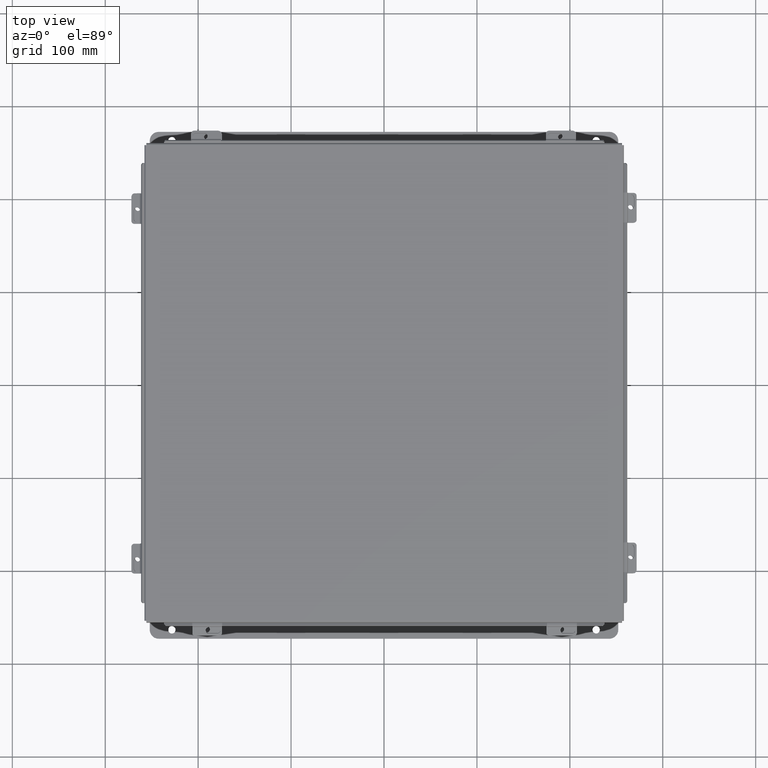
[diagram: clean part render]
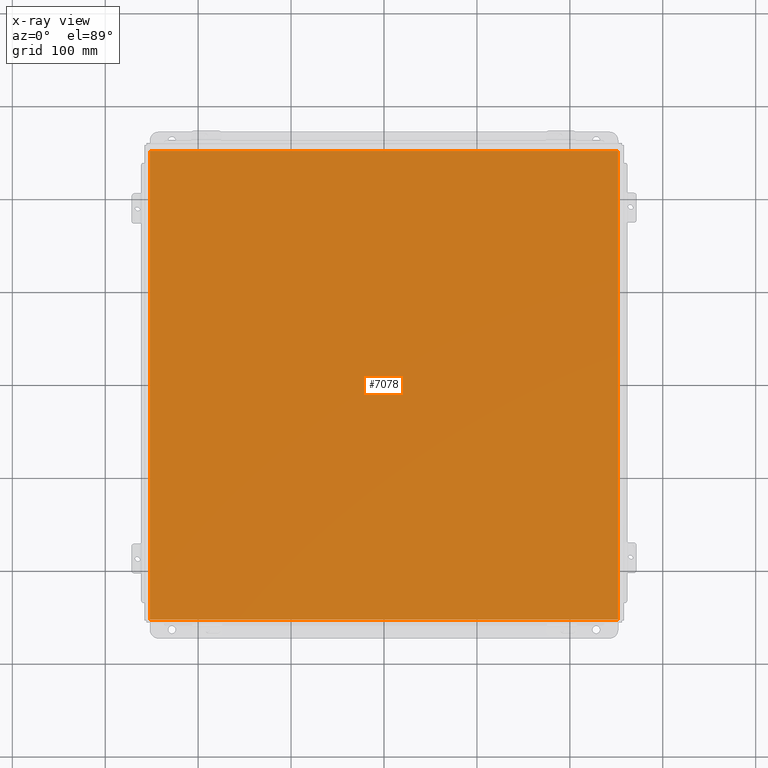
[diagram: x-ray — body ghosted, one internal face saturated and labeled with its STEP entity id]
A machine part, top view, then the same camera in x-ray: the body is ghosted and one INTERNAL B-rep face — a face not visible from any outside direction — is saturated and labeled: STEP entity #7078.
In plain terms, the highlighted planar face has unit normal (0, 0, -1).
Its self-contained STEP definition (entity closure, byte-faithful):
#652 = LINE ( 'NONE', #2819, #8525 ) ;
#906 = LINE ( 'NONE', #3030, #6711 ) ;
#1067 = CARTESIAN_POINT ( 'NONE',  ( -9.912299999999998300, -9.925299999999998200, 4.268512490100411300E-017 ) ) ;
#1500 = VERTEX_POINT ( 'NONE', #3224 ) ;
#2051 = ORIENTED_EDGE ( 'NONE', *, *, #2681, .F. ) ;
#2080 = DIRECTION ( 'NONE',  ( 1.000000000000000000, 0.0000000000000000000, 0.0000000000000000000 ) ) ;
#2096 = FACE_OUTER_BOUND ( 'NONE', #2622, .T. ) ;
#2171 = VERTEX_POINT ( 'NONE', #6769 ) ;
#2272 = DIRECTION ( 'NONE',  ( -1.000000000000000000, -0.0000000000000000000, -0.0000000000000000000 ) ) ;
#2355 = VERTEX_POINT ( 'NONE', #4726 ) ;
#2416 = DIRECTION ( 'NONE',  ( -0.0000000000000000000, -1.000000000000000000, -0.0000000000000000000 ) ) ;
#2622 = EDGE_LOOP ( 'NONE', ( #7861, #4290, #2051, #6217 ) ) ;
#2681 = EDGE_CURVE ( 'NONE', #6149, #2171, #6349, .T. ) ;
#2702 = AXIS2_PLACEMENT_3D ( 'NONE', #6548, #8090, #3529 ) ;
#2819 = CARTESIAN_POINT ( 'NONE',  ( -9.999999999999998200, -9.925299999999998200, 0.0000000000000000000 ) ) ;
#2944 = EDGE_CURVE ( 'NONE', #6149, #2355, #652, .T. ) ;
#3030 = CARTESIAN_POINT ( 'NONE',  ( -9.999999999999998200, 9.925300000000001800, 0.0000000000000000000 ) ) ;
#3224 = CARTESIAN_POINT ( 'NONE',  ( 9.912300000000001900, 9.925299999999998200, 4.268512490100411300E-017 ) ) ;
#3529 = DIRECTION ( 'NONE',  ( -1.000000000000000000, 0.0000000000000000000, -0.0000000000000000000 ) ) ;
#4290 = ORIENTED_EDGE ( 'NONE', *, *, #5084, .T. ) ;
#4333 = VECTOR ( 'NONE', #9418, 39.37007874015748100 ) ;
#4726 = CARTESIAN_POINT ( 'NONE',  ( 9.912300000000001900, -9.925299999999998200, 4.268512490100411300E-017 ) ) ;
#5084 = EDGE_CURVE ( 'NONE', #1500, #2171, #906, .T. ) ;
#5269 = CARTESIAN_POINT ( 'NONE',  ( -9.912299999999998300, -9.925299999999992900, 4.268512490100411300E-017 ) ) ;
#5505 = CARTESIAN_POINT ( 'NONE',  ( 9.912300000000001900, 9.925300000000001800, 4.268512490100411300E-017 ) ) ;
#5764 = LINE ( 'NONE', #5505, #8039 ) ;
#5786 = PLANE ( 'NONE',  #2702 ) ;
#6149 = VERTEX_POINT ( 'NONE', #5269 ) ;
#6217 = ORIENTED_EDGE ( 'NONE', *, *, #2944, .T. ) ;
#6349 = LINE ( 'NONE', #1067, #4333 ) ;
#6548 = CARTESIAN_POINT ( 'NONE',  ( 0.0000000000000000000, 0.0000000000000000000, 0.0000000000000000000 ) ) ;
#6711 = VECTOR ( 'NONE', #2272, 39.37007874015748100 ) ;
#6769 = CARTESIAN_POINT ( 'NONE',  ( -9.912299999999998300, 9.925300000000001800, 4.268512490100411300E-017 ) ) ;
#7078 = ADVANCED_FACE ( 'NONE', ( #2096 ), #5786, .F. ) ;
#7861 = ORIENTED_EDGE ( 'NONE', *, *, #8024, .F. ) ;
#8024 = EDGE_CURVE ( 'NONE', #1500, #2355, #5764, .T. ) ;
#8039 = VECTOR ( 'NONE', #2416, 39.37007874015748100 ) ;
#8090 = DIRECTION ( 'NONE',  ( 0.0000000000000000000, 0.0000000000000000000, -1.000000000000000000 ) ) ;
#8525 = VECTOR ( 'NONE', #2080, 39.37007874015748100 ) ;
#9418 = DIRECTION ( 'NONE',  ( -0.0000000000000000000, 1.000000000000000000, -0.0000000000000000000 ) ) ;